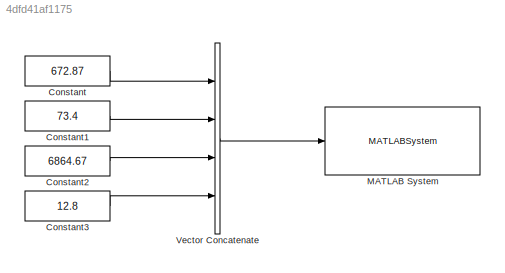
MODEL slx_4dfd41af1175
KIND model
CONFIG AbsTol = auto
CONFIG EnableMultiTasking = on
CONFIG FixedStep = auto
CONFIG MaxStep = auto
CONFIG MinStep = auto
CONFIG RelTol = 1e-3
CONFIG SampleTimeConstraint = Unconstrained
CONFIG Solver = FixedStepAuto
CONFIG SolverName = FixedStepAuto
CONFIG StartTime = 0.0
CONFIG StopTime = 10.0
BLOCK [Constant] Constant
  OutDataTypeStr = single
  Value = 672.87
BLOCK [Constant] Constant1
  OutDataTypeStr = single
  Value = 73.4
BLOCK [Constant] Constant2
  OutDataTypeStr = single
  Value = 6864.67
BLOCK [Constant] Constant3
  OutDataTypeStr = single
  Value = 12.8
BLOCK [MATLABSystem] MATLAB System
  MaskDisplay = disp('SDLogger');\nport_label('input',1,'data');
  MaskType = SDLogger
  Ports = [1]
  SimulateUsing = Code generation
  System = SDLogger
BLOCK [Concatenate] Vector Concatenate
  NumInputs = 4
  Ports = [4, 1]
LINE Constant1:1 -> Vector Concatenate:2
LINE Constant2:1 -> Vector Concatenate:3
LINE Constant3:1 -> Vector Concatenate:4
LINE Constant:1 -> Vector Concatenate:1
LINE Vector Concatenate:1 -> MATLAB System:1
